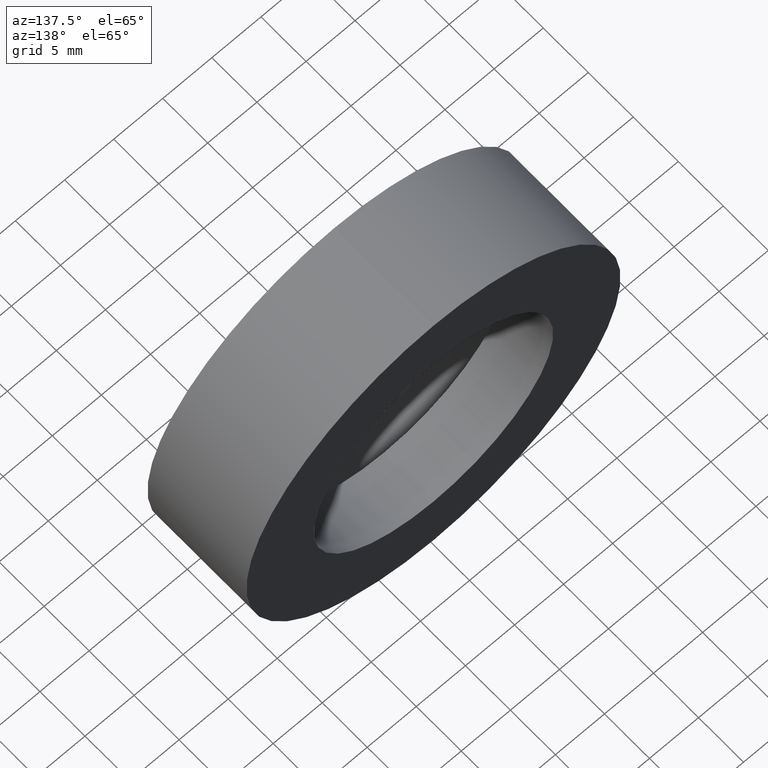
[diagram: clean part render]
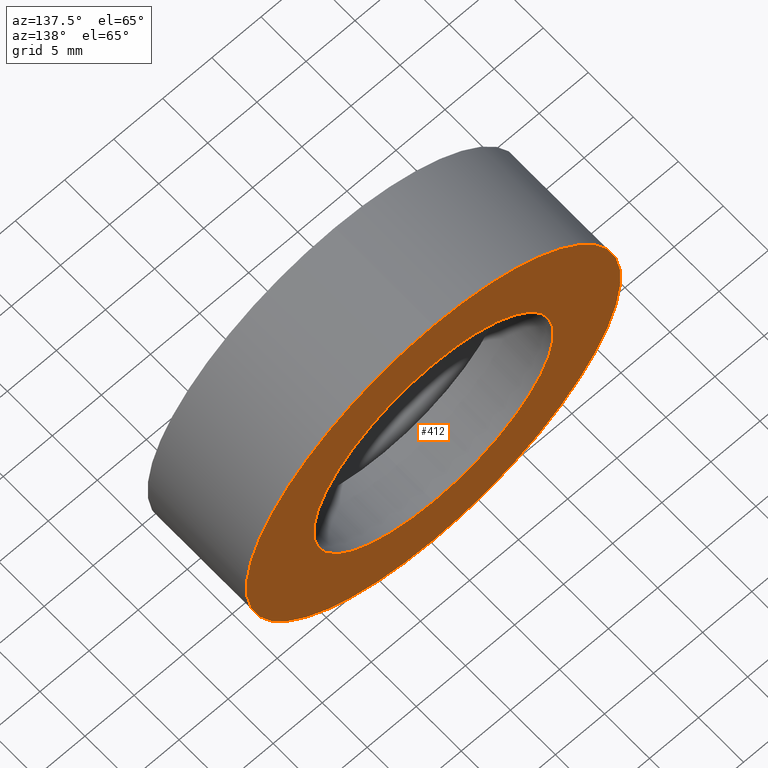
[diagram: same view with one face highlighted and labeled with its STEP entity id]
A machine part, auxiliary view. The second image highlights one B-rep face of the part: STEP entity #412.
In plain terms, the highlighted planar face has unit normal (0, -1, 0).
Its self-contained STEP definition (entity closure, byte-faithful):
#19 = CIRCLE ( 'NONE', #89, 19.05000000000000400 ) ;
#32 = CARTESIAN_POINT ( 'NONE',  ( 1.494069094959771600E-015, 10.99999999999999600, -12.20000000000000600 ) ) ;
#61 = CARTESIAN_POINT ( 'NONE',  ( 12.20000000000000600, 11.00000000000000000, 0.0000000000000000000 ) ) ;
#70 = CARTESIAN_POINT ( 'NONE',  ( 0.0000000000000000000, 10.99999999999999600, 0.0000000000000000000 ) ) ;
#76 = CARTESIAN_POINT ( 'NONE',  ( 0.0000000000000000000, 10.99999999999999600, 19.05000000000000400 ) ) ;
#84 = FACE_OUTER_BOUND ( 'NONE', #98, .T. ) ;
#89 = AXIS2_PLACEMENT_3D ( 'NONE', #70, #91, #371 ) ;
#91 = DIRECTION ( 'NONE',  ( -0.0000000000000000000, 1.000000000000000000, -0.0000000000000000000 ) ) ;
#95 = CIRCLE ( 'NONE', #280, 19.05000000000000400 ) ;
#98 = EDGE_LOOP ( 'NONE', ( #277, #282 ) ) ;
#100 = DIRECTION ( 'NONE',  ( -0.0000000000000000000, 1.000000000000000000, -0.0000000000000000000 ) ) ;
#120 = DIRECTION ( 'NONE',  ( 0.0000000000000000000, -0.0000000000000000000, -1.000000000000000000 ) ) ;
#121 = CIRCLE ( 'NONE', #359, 12.20000000000000600 ) ;
#132 = DIRECTION ( 'NONE',  ( -0.0000000000000000000, 1.000000000000000000, -0.0000000000000000000 ) ) ;
#140 = CARTESIAN_POINT ( 'NONE',  ( 0.0000000000000000000, 10.99999999999999600, 0.0000000000000000000 ) ) ;
#141 = FACE_BOUND ( 'NONE', #214, .T. ) ;
#151 = VERTEX_POINT ( 'NONE', #76 ) ;
#158 = VERTEX_POINT ( 'NONE', #32 ) ;
#169 = DIRECTION ( 'NONE',  ( 0.0000000000000000000, 0.0000000000000000000, 1.000000000000000000 ) ) ;
#214 = EDGE_LOOP ( 'NONE', ( #433, #268 ) ) ;
#218 = CARTESIAN_POINT ( 'NONE',  ( 2.332952152375708400E-015, 10.99999999999999600, -19.05000000000000400 ) ) ;
#233 = PLANE ( 'NONE',  #369 ) ;
#237 = EDGE_CURVE ( 'NONE', #387, #151, #95, .T. ) ;
#245 = DIRECTION ( 'NONE',  ( -0.0000000000000000000, 1.000000000000000000, -0.0000000000000000000 ) ) ;
#254 = CARTESIAN_POINT ( 'NONE',  ( 0.0000000000000000000, 10.99999999999999600, 0.0000000000000000000 ) ) ;
#268 = ORIENTED_EDGE ( 'NONE', *, *, #293, .F. ) ;
#277 = ORIENTED_EDGE ( 'NONE', *, *, #391, .T. ) ;
#280 = AXIS2_PLACEMENT_3D ( 'NONE', #388, #100, #377 ) ;
#282 = ORIENTED_EDGE ( 'NONE', *, *, #237, .T. ) ;
#286 = AXIS2_PLACEMENT_3D ( 'NONE', #254, #245, #169 ) ;
#293 = EDGE_CURVE ( 'NONE', #158, #380, #314, .T. ) ;
#314 = CIRCLE ( 'NONE', #286, 12.20000000000000600 ) ;
#343 = CARTESIAN_POINT ( 'NONE',  ( 0.0000000000000000000, 10.99999999999999600, 12.20000000000000600 ) ) ;
#359 = AXIS2_PLACEMENT_3D ( 'NONE', #140, #132, #398 ) ;
#369 = AXIS2_PLACEMENT_3D ( 'NONE', #61, #370, #120 ) ;
#370 = DIRECTION ( 'NONE',  ( 0.0000000000000000000, -1.000000000000000000, 0.0000000000000000000 ) ) ;
#371 = DIRECTION ( 'NONE',  ( 0.0000000000000000000, 0.0000000000000000000, 1.000000000000000000 ) ) ;
#377 = DIRECTION ( 'NONE',  ( 0.0000000000000000000, 0.0000000000000000000, 1.000000000000000000 ) ) ;
#380 = VERTEX_POINT ( 'NONE', #343 ) ;
#387 = VERTEX_POINT ( 'NONE', #218 ) ;
#388 = CARTESIAN_POINT ( 'NONE',  ( 0.0000000000000000000, 10.99999999999999600, 0.0000000000000000000 ) ) ;
#391 = EDGE_CURVE ( 'NONE', #151, #387, #19, .T. ) ;
#398 = DIRECTION ( 'NONE',  ( 0.0000000000000000000, 0.0000000000000000000, 1.000000000000000000 ) ) ;
#412 = ADVANCED_FACE ( 'NONE', ( #141, #84 ), #233, .F. ) ;
#414 = EDGE_CURVE ( 'NONE', #380, #158, #121, .T. ) ;
#433 = ORIENTED_EDGE ( 'NONE', *, *, #414, .F. ) ;